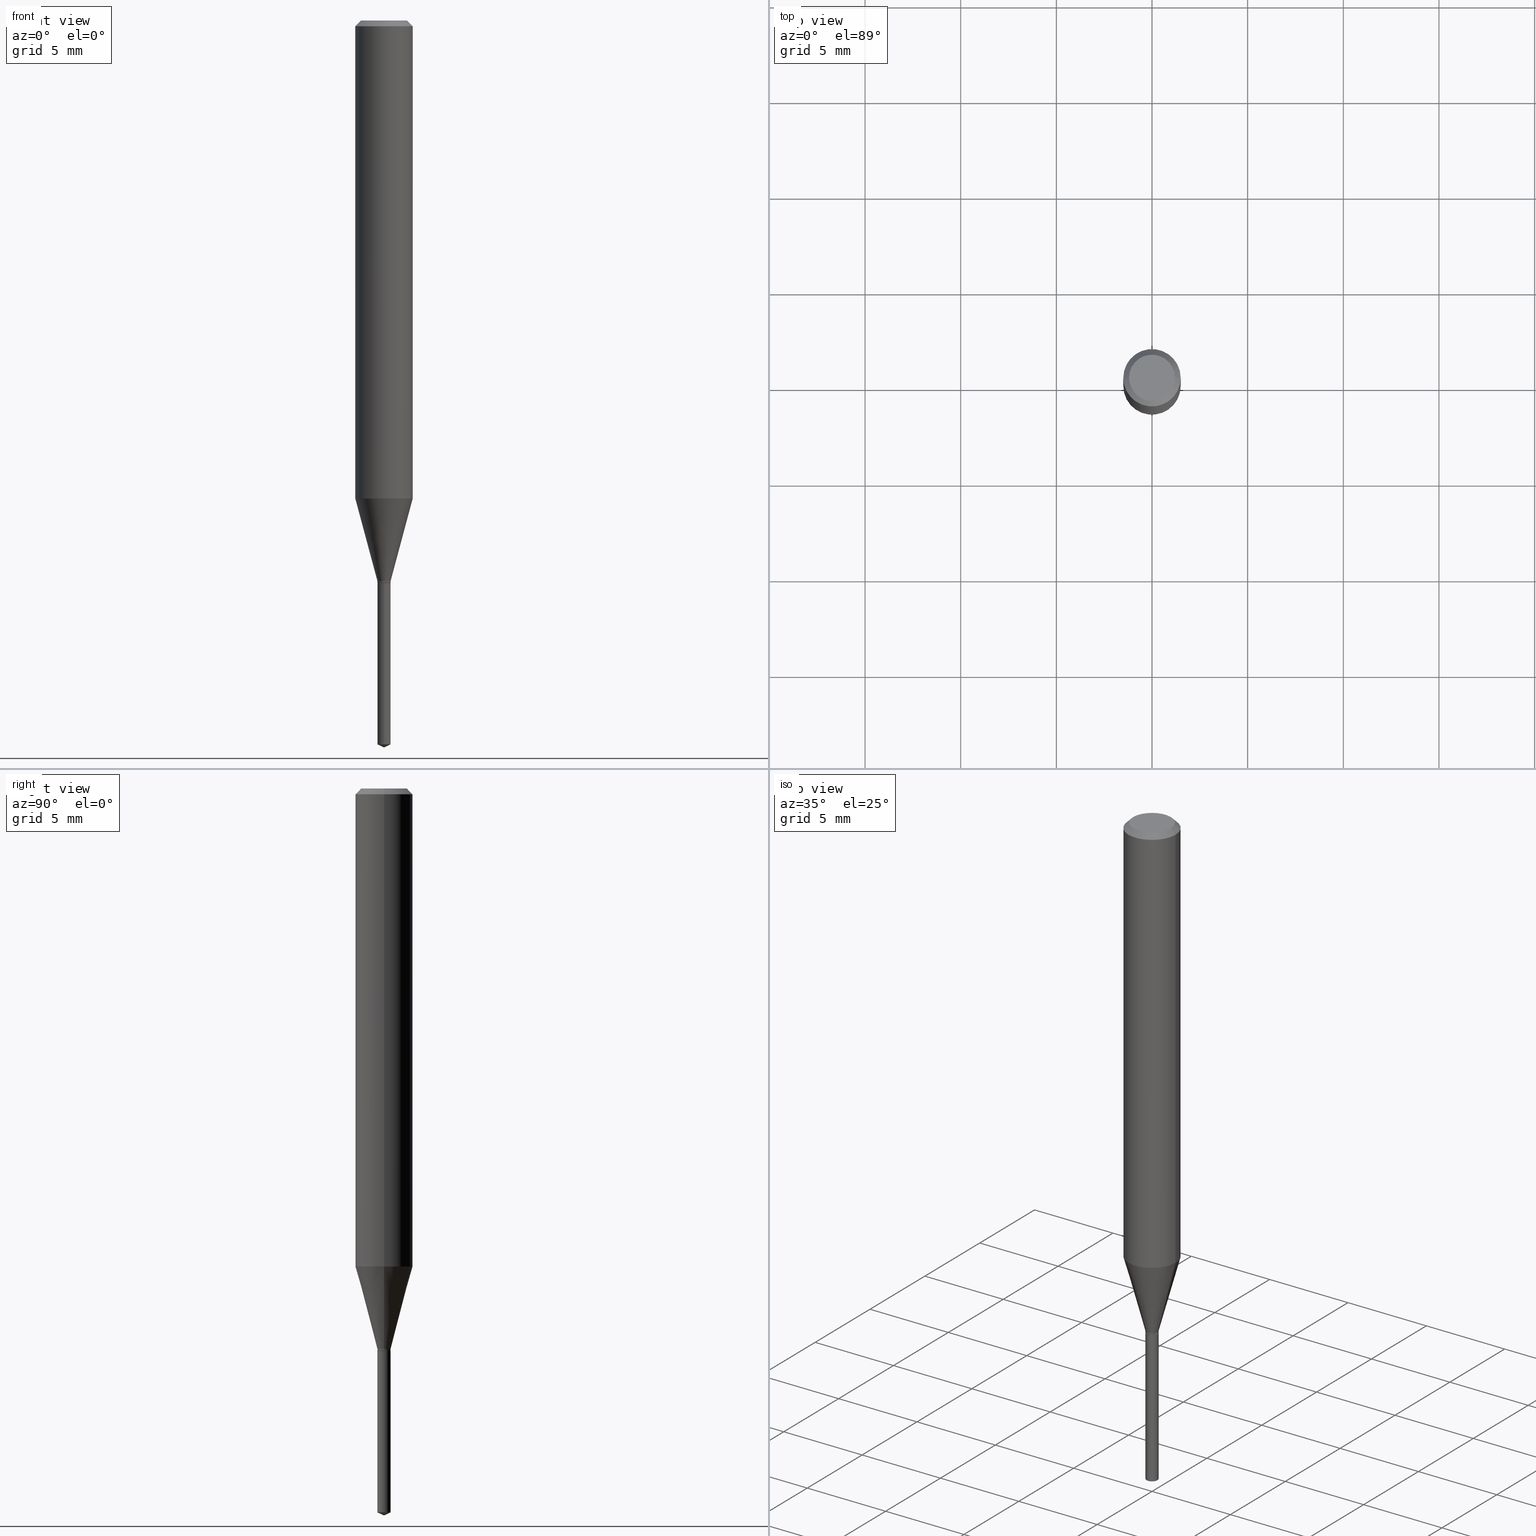
[diagram: canonical four-view strip — front | top / right | iso, engineering-drawing reading convention]
A machine part, canonical four-view strip (front | top / right | iso — engineering-drawing reading convention). The complete STEP part file that produces these views, byte-faithful:
ISO-10303-21;
HEADER;
FILE_DESCRIPTION (( 'STEP AP203' ),
    '1' );
FILE_NAME ('07444.STEP',
    '2024-04-23T21:30:43',
    ( '' ),
    ( '' ),
    'SwSTEP 2.0',
    'SolidWorks 2023',
    '' );
FILE_SCHEMA (( 'CONFIG_CONTROL_DESIGN' ));
ENDSEC;

DATA;
#1 = VERTEX_POINT ( 'NONE', #390 ) ;
#2 = EDGE_CURVE ( 'NONE', #226, #453, #181, .T. ) ;
#3 = DIRECTION ( 'NONE',  ( -0.7071067811865218156, 7.493145998870261075E-15, 0.7071067811865732189 ) ) ;
#4 = FACE_OUTER_BOUND ( 'NONE', #434, .T. ) ;
#5 =( NAMED_UNIT ( * ) SI_UNIT ( $, .STERADIAN. ) SOLID_ANGLE_UNIT ( ) );
#6 = DIRECTION ( 'NONE',  ( -2.436895557736890355E-29, 3.503758718580032420E-15, 1.000000000000000000 ) ) ;
#7 = AXIS2_PLACEMENT_3D ( 'NONE', #12, #381, #354 ) ;
#8 = ORIENTED_EDGE ( 'NONE', *, *, #334, .F. ) ;
#9 = DIRECTION ( 'NONE',  ( 0.2588190451025213501, 1.565188264969621968E-15, 0.9659258262890682012 ) ) ;
#10 = CIRCLE ( 'NONE', #287, 0.04724000000000000421 ) ;
#11 = CARTESIAN_POINT ( 'NONE',  ( 0.000000000000000000, 0.000000000000000000, 0.000000000000000000 ) ) ;
#12 = CARTESIAN_POINT ( 'NONE',  ( 2.820603721053936118E-29, -4.027074576221683782E-15, -1.153399999999999981 ) ) ;
#13 = CARTESIAN_POINT ( 'NONE',  ( 2.830630143159295633E-29, -4.041389649710940900E-15, -1.157499999999999973 ) ) ;
#14 = LINE ( 'NONE', #356, #463 ) ;
#15 = ORIENTED_EDGE ( 'NONE', *, *, #63, .F. ) ;
#16 = DIRECTION ( 'NONE',  ( 1.000000000000000000, -6.982962677686273810E-15, 0.000000000000000000 ) ) ;
#17 = CALENDAR_DATE ( 2024, 23, 4 ) ;
#18 = CARTESIAN_POINT ( 'NONE',  ( 2.830630143159295633E-29, -4.041389649710940900E-15, -1.157499999999999973 ) ) ;
#19 = CIRCLE ( 'NONE', #200, 0.05905000000000011628 ) ;
#20 = CONICAL_SURFACE ( 'NONE', #426, 0.05904999999999999832, 0.7853981633974452814 ) ;
#21 = PRODUCT_DEFINITION ( 'UNKNOWN', '', #256, #32 ) ;
#22 = CARTESIAN_POINT ( 'NONE',  ( 0.000000000000000000, 0.000000000000000000, 0.000000000000000000 ) ) ;
#23 = DIRECTION ( 'NONE',  ( -2.436895557736890355E-29, 3.503758718580032420E-15, 1.000000000000000000 ) ) ;
#24 = APPROVAL_STATUS ( 'not_yet_approved' ) ;
#25 = EDGE_CURVE ( 'NONE', #231, #178, #351, .T. ) ;
#26 = LINE ( 'NONE', #188, #255 ) ;
#27 = CARTESIAN_POINT ( 'NONE',  ( 0.01359999999999999924, -4.134612201458052346E-15, -1.156999999999999806 ) ) ;
#28 = COORDINATED_UNIVERSAL_TIME_OFFSET ( 5, 0, .BEHIND. ) ;
#29 = CARTESIAN_POINT ( 'NONE',  ( 0.000000000000000000, 0.000000000000000000, 0.000000000000000000 ) ) ;
#30 = AXIS2_PLACEMENT_3D ( 'NONE', #110, #36, #193 ) ;
#31 = CIRCLE ( 'NONE', #461, 0.05905000000000011628 ) ;
#32 = DESIGN_CONTEXT ( 'detailed design', #117, 'design' ) ;
#33 = DIRECTION ( 'NONE',  ( 6.982962677686265922E-15, 1.000000000000000000, -3.503758718580032420E-15 ) ) ;
#34 = CARTESIAN_POINT ( 'NONE',  ( -0.05904999999999999832, 3.711095515056362547E-16, -0.01181000000000007218 ) ) ;
#35 = PERSON_AND_ORGANIZATION_ROLE ( 'creator' ) ;
#36 = DIRECTION ( 'NONE',  ( -2.445468806185136597E-29, 3.491481338843145583E-15, 1.000000000000000000 ) ) ;
#37 = DIRECTION ( 'NONE',  ( 1.000000000000000000, -6.982962677686265922E-15, 4.876176775795935793E-29 ) ) ;
#38 = EDGE_CURVE ( 'NONE', #453, #226, #403, .T. ) ;
#39 = ORIENTED_EDGE ( 'NONE', *, *, #38, .F. ) ;
#40 = EDGE_CURVE ( 'NONE', #140, #348, #47, .T. ) ;
#41 = AXIS2_PLACEMENT_3D ( 'NONE', #214, #288, #400 ) ;
#42 = ORIENTED_EDGE ( 'NONE', *, *, #422, .T. ) ;
#43 = ADVANCED_FACE ( 'NONE', ( #201 ), #247, .T. ) ;
#44 = DIRECTION ( 'NONE',  ( -2.445468806185136597E-29, 3.491481338843145583E-15, 1.000000000000000000 ) ) ;
#45 = ADVANCED_FACE ( 'NONE', ( #291 ), #280, .F. ) ;
#46 = AXIS2_PLACEMENT_3D ( 'NONE', #344, #319, #239 ) ;
#47 = LINE ( 'NONE', #315, #406 ) ;
#48 = DIRECTION ( 'NONE',  ( 0.7071067811865453523, -7.319954787623248157E-15, -0.7071067811865496822 ) ) ;
#49 =( CONVERSION_BASED_UNIT ( 'INCH', #398 ) LENGTH_UNIT ( ) NAMED_UNIT ( #384 ) );
#50 = EDGE_LOOP ( 'NONE', ( #55, #88, #340, #15 ) ) ;
#51 = FACE_OUTER_BOUND ( 'NONE', #296, .T. ) ;
#52 = CARTESIAN_POINT ( 'NONE',  ( -0.04724000000000000421, 3.504923541997677355E-16, -3.380025165670481712E-19 ) ) ;
#53 = EDGE_LOOP ( 'NONE', ( #100, #429, #86, #197 ) ) ;
#54 = DIRECTION ( 'NONE',  ( -2.445468806185136597E-29, 3.491481338843145583E-15, 1.000000000000000000 ) ) ;
#55 = ORIENTED_EDGE ( 'NONE', *, *, #99, .F. ) ;
#56 = ORGANIZATION ( 'UNSPECIFIED', 'UNSPECIFIED', '' ) ;
#57 = DIRECTION ( 'NONE',  ( -2.445468806185136597E-29, 3.491481338843145583E-15, 1.000000000000000000 ) ) ;
#58 = DIRECTION ( 'NONE',  ( -2.445468806185136597E-29, 3.491481338843145583E-15, 1.000000000000000000 ) ) ;
#59 =( NAMED_UNIT ( * ) PLANE_ANGLE_UNIT ( ) SI_UNIT ( $, .RADIAN. ) );
#60 = SECURITY_CLASSIFICATION_LEVEL ( 'unclassified' ) ;
#61 = EDGE_CURVE ( 'NONE', #175, #457, #478, .T. ) ;
#62 = PRODUCT_DEFINITION_SHAPE ( 'NONE', 'NONE',  #21 ) ;
#63 = EDGE_CURVE ( 'NONE', #206, #175, #19, .T. ) ;
#64 = CYLINDRICAL_SURFACE ( 'NONE', #357, 0.05905000000000006077 ) ;
#65 = DATE_TIME_ROLE ( 'creation_date' ) ;
#66 = AXIS2_PLACEMENT_3D ( 'NONE', #89, #198, #415 ) ;
#67 = VECTOR ( 'NONE', #48, 39.37007874015748143 ) ;
#68 = CARTESIAN_POINT ( 'NONE',  ( 2.830630143159295633E-29, -4.041389649710940900E-15, -1.157499999999999973 ) ) ;
#69 = DATE_AND_TIME ( #192, #242 ) ;
#70 = EDGE_CURVE ( 'NONE', #206, #349, #211, .T. ) ;
#71 = DIRECTION ( 'NONE',  ( 1.000000000000000000, -6.982962677686267499E-15, 4.876176775795936353E-29 ) ) ;
#72 = FACE_OUTER_BOUND ( 'NONE', #81, .T. ) ;
#73 = PERSON_AND_ORGANIZATION_ROLE ( 'design_owner' ) ;
#74 = ADVANCED_FACE ( 'NONE', ( #282 ), #417, .T. ) ;
#75 = DATE_AND_TIME ( #254, #276 ) ;
#76 = DIRECTION ( 'NONE',  ( -2.436895557736890355E-29, 3.503758718580032420E-15, 1.000000000000000000 ) ) ;
#77 = CC_DESIGN_APPROVAL ( #292, ( #433 ) ) ;
#78 = PERSON_AND_ORGANIZATION_ROLE ( 'creator' ) ;
#79 = DIRECTION ( 'NONE',  ( 1.000000000000000000, -6.982962677686266711E-15, 4.876176775795935793E-29 ) ) ;
#80 = LINE ( 'NONE', #224, #432 ) ;
#81 = EDGE_LOOP ( 'NONE', ( #157, #420, #84, #229 ) ) ;
#82 = DIRECTION ( 'NONE',  ( -2.438088387897960049E-29, 3.491481338843145188E-15, 1.000000000000000000 ) ) ;
#83 = CIRCLE ( 'NONE', #311, 0.01359999999999999924 ) ;
#84 = ORIENTED_EDGE ( 'NONE', *, *, #174, .F. ) ;
#85 = CARTESIAN_POINT ( 'NONE',  ( 0.05905000000000013016, -3.847187489990594965E-15, -0.9837782907959944367 ) ) ;
#86 = ORIENTED_EDGE ( 'NONE', *, *, #2, .F. ) ;
#87 = CC_DESIGN_PERSON_AND_ORGANIZATION_ASSIGNMENT ( #476, #73, ( #212 ) ) ;
#88 = ORIENTED_EDGE ( 'NONE', *, *, #38, .T. ) ;
#89 = CARTESIAN_POINT ( 'NONE',  ( 3.640308713383532375E-29, -5.205542270312043558E-15, -1.489758215849092071 ) ) ;
#90 = CARTESIAN_POINT ( 'NONE',  ( 3.640308713383532375E-29, -5.205542270312043558E-15, -1.489758215849092071 ) ) ;
#91 = PLANE ( 'NONE',  #337 ) ;
#92 = CLOSED_SHELL ( 'NONE', ( #414, #378, #233, #392, #45 ) ) ;
#93 = VERTEX_POINT ( 'NONE', #248 ) ;
#94 = PERSON_AND_ORGANIZATION ( #345, #56 ) ;
#95 = CARTESIAN_POINT ( 'NONE',  ( 3.665860549465548495E-29, -5.213551284776692655E-15, -1.496099999999999985 ) ) ;
#96 = ORIENTED_EDGE ( 'NONE', *, *, #203, .T. ) ;
#97 = ADVANCED_FACE ( 'NONE', ( #475 ), #115, .T. ) ;
#98 = EDGE_LOOP ( 'NONE', ( #102, #262 ) ) ;
#99 = EDGE_CURVE ( 'NONE', #453, #206, #216, .T. ) ;
#100 = ORIENTED_EDGE ( 'NONE', *, *, #370, .T. ) ;
#101 = MECHANICAL_CONTEXT ( 'NONE', #488, 'mechanical' ) ;
#102 = ORIENTED_EDGE ( 'NONE', *, *, #410, .T. ) ;
#103 = LOCAL_TIME ( 17, 30, 43.00000000000000000, #113 ) ;
#104 = DIRECTION ( 'NONE',  ( 1.000000000000000000, -6.982962677686266711E-15, 0.000000000000000000 ) ) ;
#105 = EDGE_CURVE ( 'NONE', #204, #427, #26, .T. ) ;
#106 = DIRECTION ( 'NONE',  ( -2.445468806185136877E-29, 3.491481338843145188E-15, 1.000000000000000000 ) ) ;
#107 = FACE_OUTER_BOUND ( 'NONE', #307, .T. ) ;
#108 = DATE_TIME_ROLE ( 'classification_date' ) ;
#109 = PERSON_AND_ORGANIZATION ( #345, #56 ) ;
#110 = CARTESIAN_POINT ( 'NONE',  ( 2.820603721053936118E-29, -4.027074576221683782E-15, -1.153399999999999981 ) ) ;
#111 = DIRECTION ( 'NONE',  ( 2.445468806185136597E-29, -3.491481338843145583E-15, -1.000000000000000000 ) ) ;
#112 = CARTESIAN_POINT ( 'NONE',  ( 2.830630143159295633E-29, -4.041389649710940900E-15, -1.157499999999999973 ) ) ;
#113 = COORDINATED_UNIVERSAL_TIME_OFFSET ( 5, 0, .BEHIND. ) ;
#114 = AXIS2_PLACEMENT_3D ( 'NONE', #135, #271, #391 ) ;
#115 = CYLINDRICAL_SURFACE ( 'NONE', #329, 0.01359999999999999924 ) ;
#116 = ADVANCED_FACE ( 'NONE', ( #297 ), #91, .F. ) ;
#117 = APPLICATION_CONTEXT ( 'configuration controlled 3d designs of mechanical parts and assemblies' ) ;
#118 = ADVANCED_FACE ( 'NONE', ( #454 ), #119, .T. ) ;
#119 = CONICAL_SURFACE ( 'NONE', #189, 0.01359999999999999924, 0.2617993877991500740 ) ;
#120 = VECTOR ( 'NONE', #387, 39.37007874015748854 ) ;
#121 = ADVANCED_FACE ( 'NONE', ( #223 ), #365, .T. ) ;
#122 = ORIENTED_EDGE ( 'NONE', *, *, #228, .F. ) ;
#123 = CARTESIAN_POINT ( 'NONE',  ( -0.05905000000000013016, -3.015268058406879369E-15, -0.9837782907959944367 ) ) ;
#124 = DIRECTION ( 'NONE',  ( -2.445468806185136877E-29, 3.491481338843145188E-15, 1.000000000000000000 ) ) ;
#125 = EDGE_CURVE ( 'NONE', #427, #226, #333, .T. ) ;
#126 = LOCAL_TIME ( 17, 30, 43.00000000000000000, #284 ) ;
#127 = ORIENTED_EDGE ( 'NONE', *, *, #125, .T. ) ;
#128 = ORIENTED_EDGE ( 'NONE', *, *, #456, .F. ) ;
#129 = CARTESIAN_POINT ( 'NONE',  ( -9.496829241649684687E-17, -0.01360000000000521035, -1.489758215849092071 ) ) ;
#130 = DIRECTION ( 'NONE',  ( -2.436895557736890355E-29, 3.503758718580032420E-15, 1.000000000000000000 ) ) ;
#131 = AXIS2_PLACEMENT_3D ( 'NONE', #438, #185, #323 ) ;
#132 = ORIENTED_EDGE ( 'NONE', *, *, #137, .F. ) ;
#133 = APPLICATION_PROTOCOL_DEFINITION ( 'international standard', 'config_control_design', 1994, #488 ) ;
#134 = DIRECTION ( 'NONE',  ( -6.328713451373390678E-15, -0.9063077870366516020, 0.4226182617406956665 ) ) ;
#135 = CARTESIAN_POINT ( 'NONE',  ( 2.888098660104664204E-31, -4.123439461173780263E-17, -0.01181000000000007218 ) ) ;
#136 = DIRECTION ( 'NONE',  ( -6.982962677686266711E-15, -1.000000000000000000, 0.000000000000000000 ) ) ;
#137 = EDGE_CURVE ( 'NONE', #449, #93, #451, .T. ) ;
#138 = ORIENTED_EDGE ( 'NONE', *, *, #25, .T. ) ;
#139 = AXIS2_PLACEMENT_3D ( 'NONE', #208, #58, #465 ) ;
#140 = VERTEX_POINT ( 'NONE', #473 ) ;
#141 = CARTESIAN_POINT ( 'NONE',  ( 2.830630143159295633E-29, -4.041389649710940900E-15, -1.157499999999999973 ) ) ;
#142 = CC_DESIGN_SECURITY_CLASSIFICATION ( #433, ( #256 ) ) ;
#143 = FACE_OUTER_BOUND ( 'NONE', #318, .T. ) ;
#144 = DIRECTION ( 'NONE',  ( 1.000000000000000000, -6.982962677686273810E-15, 0.000000000000000000 ) ) ;
#145 = CARTESIAN_POINT ( 'NONE',  ( 0.000000000000000000, 0.000000000000000000, 0.000000000000000000 ) ) ;
#146 = CC_DESIGN_PERSON_AND_ORGANIZATION_ASSIGNMENT ( #94, #238, ( #256 ) ) ;
#147 = ADVANCED_FACE ( 'NONE', ( #436 ), #155, .T. ) ;
#148 = DIRECTION ( 'NONE',  ( 0.7071067811865218156, -2.468850131081987665E-15, 0.7071067811865732189 ) ) ;
#149 = CARTESIAN_POINT ( 'NONE',  ( 8.265746106709734507E-48, -1.180129479067563789E-33, -3.380025165646692144E-19 ) ) ;
#150 = APPROVAL_STATUS ( 'not_yet_approved' ) ;
#151 = DIRECTION ( 'NONE',  ( -2.445468806185136597E-29, 3.491481338843145583E-15, 1.000000000000000000 ) ) ;
#152 = ADVANCED_FACE ( 'NONE', ( #359 ), #199, .T. ) ;
#153 = ORIENTED_EDGE ( 'NONE', *, *, #243, .F. ) ;
#154 = CARTESIAN_POINT ( 'NONE',  ( 2.829407408756202832E-29, -4.039643909041518608E-15, -1.156999999999999806 ) ) ;
#155 = CONICAL_SURFACE ( 'NONE', #30, 0.01359999999999999924, 0.2617993877991500740 ) ;
#156 = AXIS2_PLACEMENT_3D ( 'NONE', #141, #54, #16 ) ;
#157 = ORIENTED_EDGE ( 'NONE', *, *, #480, .T. ) ;
#158 = SHAPE_DEFINITION_REPRESENTATION ( #62, #442 ) ;
#159 = ORIENTED_EDGE ( 'NONE', *, *, #372, .T. ) ;
#160 = ORIENTED_EDGE ( 'NONE', *, *, #353, .T. ) ;
#161 = AXIS2_PLACEMENT_3D ( 'NONE', #260, #259, #163 ) ;
#162 = CIRCLE ( 'NONE', #114, 0.05904999999999999832 ) ;
#163 = DIRECTION ( 'NONE',  ( 1.000000000000000000, -6.982962677686267499E-15, 4.876176775795936353E-29 ) ) ;
#164 = DIRECTION ( 'NONE',  ( -2.445468806185136597E-29, 3.491481338843145583E-15, 1.000000000000000000 ) ) ;
#165 = COORDINATED_UNIVERSAL_TIME_OFFSET ( 5, 0, .BEHIND. ) ;
#166 = DIRECTION ( 'NONE',  ( -2.445468806185136597E-29, 3.491481338843145583E-15, 1.000000000000000000 ) ) ;
#167 = ORIENTED_EDGE ( 'NONE', *, *, #70, .F. ) ;
#168 = ORIENTED_EDGE ( 'NONE', *, *, #317, .F. ) ;
#169 = DIRECTION ( 'NONE',  ( -6.982962677686267499E-15, -1.000000000000000000, 3.520397390770400227E-15 ) ) ;
#170 = AXIS2_PLACEMENT_3D ( 'NONE', #402, #76, #290 ) ;
#171 = ORIENTED_EDGE ( 'NONE', *, *, #395, .F. ) ;
#172 = LINE ( 'NONE', #207, #394 ) ;
#173 = DIRECTION ( 'NONE',  ( 0.000000000000000000, 0.000000000000000000, 1.000000000000000000 ) ) ;
#174 = EDGE_CURVE ( 'NONE', #457, #349, #425, .T. ) ;
#175 = VERTEX_POINT ( 'NONE', #85 ) ;
#176 = CARTESIAN_POINT ( 'NONE',  ( 2.405799122343734810E-29, -3.434843543873219650E-15, -0.9837782907959944367 ) ) ;
#177 = EDGE_CURVE ( 'NONE', #348, #427, #485, .T. ) ;
#178 = VERTEX_POINT ( 'NONE', #129 ) ;
#179 = CARTESIAN_POINT ( 'NONE',  ( 2.888098660104664204E-31, -4.123439461173780263E-17, -0.01181000000000007218 ) ) ;
#180 = DATE_AND_TIME ( #17, #222 ) ;
#181 = CIRCLE ( 'NONE', #139, 0.01359999999999999924 ) ;
#182 = DIRECTION ( 'NONE',  ( -2.445468806185136597E-29, 3.491481338843145583E-15, 1.000000000000000000 ) ) ;
#183 = APPROVAL_ROLE ( '' ) ;
#184 = APPROVAL ( #150, 'UNSPECIFIED' ) ;
#185 = DIRECTION ( 'NONE',  ( -2.436895557736890355E-29, 3.503758718580032420E-15, 1.000000000000000000 ) ) ;
#186 = CARTESIAN_POINT ( 'NONE',  ( 2.405799122343734810E-29, -3.434843543873219650E-15, -0.9837782907959944367 ) ) ;
#187 = DATE_AND_TIME ( #250, #103 ) ;
#188 = CARTESIAN_POINT ( 'NONE',  ( 0.01310000000000000053, -4.132866460788630843E-15, -1.157499999999999973 ) ) ;
#189 = AXIS2_PLACEMENT_3D ( 'NONE', #408, #483, #477 ) ;
#190 = CC_DESIGN_APPROVAL ( #236, ( #21 ) ) ;
#191 = CARTESIAN_POINT ( 'NONE',  ( 0.05905000000000006077, -4.123439461173744764E-16, 2.879382386107503023E-30 ) ) ;
#192 = CALENDAR_DATE ( 2024, 23, 4 ) ;
#193 = DIRECTION ( 'NONE',  ( 1.000000000000000000, -6.982962677686275388E-15, 0.000000000000000000 ) ) ;
#194 = ORIENTED_EDGE ( 'NONE', *, *, #441, .F. ) ;
#195 = AXIS2_PLACEMENT_3D ( 'NONE', #90, #458, #136 ) ;
#196 = UNCERTAINTY_MEASURE_WITH_UNIT (LENGTH_MEASURE( 1.000000000000000082E-05 ), #49, 'distance_accuracy_value', 'NONE');
#197 = ORIENTED_EDGE ( 'NONE', *, *, #125, .F. ) ;
#198 = DIRECTION ( 'NONE',  ( -2.436895557736890355E-29, 3.503758718580032420E-15, 1.000000000000000000 ) ) ;
#199 = CYLINDRICAL_SURFACE ( 'NONE', #161, 0.01359999999999999924 ) ;
#200 = AXIS2_PLACEMENT_3D ( 'NONE', #186, #182, #326 ) ;
#201 = FACE_OUTER_BOUND ( 'NONE', #263, .T. ) ;
#202 = CARTESIAN_POINT ( 'NONE',  ( 2.829407408756202832E-29, -4.039643909041518608E-15, -1.156999999999999806 ) ) ;
#203 = EDGE_CURVE ( 'NONE', #1, #178, #301, .T. ) ;
#204 = VERTEX_POINT ( 'NONE', #294 ) ;
#205 = EDGE_LOOP ( 'NONE', ( #459, #42 ) ) ;
#206 = VERTEX_POINT ( 'NONE', #123 ) ;
#207 = CARTESIAN_POINT ( 'NONE',  ( 0.01359999999999999924, -4.122042868638216732E-15, -1.153399999999999981 ) ) ;
#208 = CARTESIAN_POINT ( 'NONE',  ( 2.820603721053936118E-29, -4.027074576221683782E-15, -1.153399999999999981 ) ) ;
#209 = DIRECTION ( 'NONE',  ( -2.445468806185136597E-29, 3.491481338843145583E-15, 1.000000000000000000 ) ) ;
#210 = CARTESIAN_POINT ( 'NONE',  ( 3.645839443930160666E-29, -5.241973418867586655E-15, -1.496099999999999985 ) ) ;
#211 = LINE ( 'NONE', #399, #471 ) ;
#212 = PRODUCT ( '07444', '07444', '', ( #101 ) ) ;
#213 = AXIS2_PLACEMENT_3D ( 'NONE', #448, #303, #374 ) ;
#214 = CARTESIAN_POINT ( 'NONE',  ( 2.830630143159295633E-29, -4.041389649710940900E-15, -1.157499999999999973 ) ) ;
#215 = AXIS2_PLACEMENT_3D ( 'NONE', #13, #209, #352 ) ;
#216 = LINE ( 'NONE', #362, #375 ) ;
#217 = CC_DESIGN_DATE_AND_TIME_ASSIGNMENT ( #69, #65, ( #21 ) ) ;
#218 = DIRECTION ( 'NONE',  ( -2.445468806185136597E-29, 3.491481338843145583E-15, 1.000000000000000000 ) ) ;
#219 = PERSON_AND_ORGANIZATION ( #345, #56 ) ;
#220 = DIRECTION ( 'NONE',  ( -6.982962677686266711E-15, -1.000000000000000000, 0.000000000000000000 ) ) ;
#221 = CIRCLE ( 'NONE', #215, 0.01310000000000000053 ) ;
#222 = LOCAL_TIME ( 17, 30, 43.00000000000000000, #165 ) ;
#223 = FACE_OUTER_BOUND ( 'NONE', #487, .T. ) ;
#224 = CARTESIAN_POINT ( 'NONE',  ( -0.01359999999999999924, 9.663381206337361989E-17, -6.689751722746670884E-31 ) ) ;
#225 = AXIS2_PLACEMENT_3D ( 'NONE', #437, #111, #251 ) ;
#226 = VERTEX_POINT ( 'NONE', #257 ) ;
#227 = ORIENTED_EDGE ( 'NONE', *, *, #334, .T. ) ;
#228 = EDGE_CURVE ( 'NONE', #348, #453, #80, .T. ) ;
#229 = ORIENTED_EDGE ( 'NONE', *, *, #61, .F. ) ;
#230 = CLOSED_SHELL ( 'NONE', ( #253, #74, #407, #147, #97, #152, #118, #121, #285, #299, #116, #43 ) ) ;
#231 = VERTEX_POINT ( 'NONE', #416 ) ;
#232 = PERSON_AND_ORGANIZATION_ROLE ( 'classification_officer' ) ;
#233 = ADVANCED_FACE ( 'NONE', ( #355 ), #489, .T. ) ;
#234 = FACE_OUTER_BOUND ( 'NONE', #205, .T. ) ;
#235 = ORIENTED_EDGE ( 'NONE', *, *, #320, .F. ) ;
#236 = APPROVAL ( #24, 'UNSPECIFIED' ) ;
#237 = ORIENTED_EDGE ( 'NONE', *, *, #480, .F. ) ;
#238 = PERSON_AND_ORGANIZATION_ROLE ( 'design_supplier' ) ;
#239 = DIRECTION ( 'NONE',  ( 1.000000000000000000, -6.982962677686273810E-15, 0.000000000000000000 ) ) ;
#240 = EDGE_LOOP ( 'NONE', ( #302, #268, #237, #235 ) ) ;
#241 = CARTESIAN_POINT ( 'NONE',  ( -9.496829241650489572E-17, -0.01360000000000404115, -1.157499999999999973 ) ) ;
#242 = LOCAL_TIME ( 17, 30, 43.00000000000000000, #28 ) ;
#243 = EDGE_CURVE ( 'NONE', #140, #204, #221, .T. ) ;
#244 = PERSON_AND_ORGANIZATION ( #345, #56 ) ;
#245 = CARTESIAN_POINT ( 'NONE',  ( 8.265746106709734507E-48, -1.180129479067563789E-33, -3.380025165646692144E-19 ) ) ;
#246 = APPROVAL_STATUS ( 'not_yet_approved' ) ;
#247 = CONICAL_SURFACE ( 'NONE', #350, 0.01310000000000000053, 0.7853981633974119747 ) ;
#248 = CARTESIAN_POINT ( 'NONE',  ( 0.04724000000000000421, -3.852183633974369345E-16, -3.380025165621689721E-19 ) ) ;
#249 = VECTOR ( 'NONE', #335, 39.37007874015748143 ) ;
#250 = CALENDAR_DATE ( 2024, 23, 4 ) ;
#251 = DIRECTION ( 'NONE',  ( -1.000000000000000000, 6.982962677686266711E-15, 0.000000000000000000 ) ) ;
#252 = CYLINDRICAL_SURFACE ( 'NONE', #439, 0.01360000000000000098 ) ;
#253 = ADVANCED_FACE ( 'NONE', ( #107 ), #452, .T. ) ;
#254 = CALENDAR_DATE ( 2024, 23, 4 ) ;
#255 = VECTOR ( 'NONE', #148, 39.37007874015748143 ) ;
#256 = PRODUCT_DEFINITION_FORMATION_WITH_SPECIFIED_SOURCE ( 'ANY', '', #212, .NOT_KNOWN. ) ;
#257 = CARTESIAN_POINT ( 'NONE',  ( 0.01359999999999999924, -4.122042868638216732E-15, -1.153399999999999981 ) ) ;
#258 = ORIENTED_EDGE ( 'NONE', *, *, #410, .F. ) ;
#259 = DIRECTION ( 'NONE',  ( -2.445468806185136597E-29, 3.491481338843145583E-15, 1.000000000000000000 ) ) ;
#260 = CARTESIAN_POINT ( 'NONE',  ( 0.000000000000000000, 0.000000000000000000, 0.000000000000000000 ) ) ;
#261 = AXIS2_PLACEMENT_3D ( 'NONE', #11, #173, #314 ) ;
#262 = ORIENTED_EDGE ( 'NONE', *, *, #395, .T. ) ;
#263 = EDGE_LOOP ( 'NONE', ( #421, #430, #450, #300 ) ) ;
#264 = PERSON_AND_ORGANIZATION ( #345, #56 ) ;
#265 = ORIENTED_EDGE ( 'NONE', *, *, #422, .F. ) ;
#266 = AXIS2_PLACEMENT_3D ( 'NONE', #154, #44, #338 ) ;
#267 = VECTOR ( 'NONE', #466, 39.37007874015748143 ) ;
#268 = ORIENTED_EDGE ( 'NONE', *, *, #99, .T. ) ;
#269 = CARTESIAN_POINT ( 'NONE',  ( -9.228500701063235563E-28, 1.327154942851870051E-13, 37.87397874015748300 ) ) ;
#270 = ORIENTED_EDGE ( 'NONE', *, *, #317, .T. ) ;
#271 = DIRECTION ( 'NONE',  ( -2.445468806185136597E-29, 3.491481338843145583E-15, 1.000000000000000000 ) ) ;
#272 =( LENGTH_UNIT ( ) NAMED_UNIT ( * ) SI_UNIT ( $, .METRE. ) );
#273 = ORIENTED_EDGE ( 'NONE', *, *, #105, .F. ) ;
#274 = DIRECTION ( 'NONE',  ( 2.438088387897960049E-29, -3.491481338843145188E-15, -1.000000000000000000 ) ) ;
#275 = AXIS2_PLACEMENT_3D ( 'NONE', #269, #130, #428 ) ;
#276 = LOCAL_TIME ( 17, 30, 43.00000000000000000, #361 ) ;
#277 = ORIENTED_EDGE ( 'NONE', *, *, #177, .T. ) ;
#278 = LINE ( 'NONE', #313, #267 ) ;
#279 = VERTEX_POINT ( 'NONE', #241 ) ;
#280 = PLANE ( 'NONE',  #310 ) ;
#281 = MANIFOLD_SOLID_BREP ( 'Body-Move/Copy2[2]', #230 ) ;
#282 = FACE_OUTER_BOUND ( 'NONE', #377, .T. ) ;
#283 = DIRECTION ( 'NONE',  ( 1.000000000000000000, -6.982962677686266711E-15, 4.876176775795935793E-29 ) ) ;
#284 = COORDINATED_UNIVERSAL_TIME_OFFSET ( 5, 0, .BEHIND. ) ;
#285 = ADVANCED_FACE ( 'NONE', ( #4 ), #20, .T. ) ;
#286 = VECTOR ( 'NONE', #106, 39.37007874015748143 ) ;
#287 = AXIS2_PLACEMENT_3D ( 'NONE', #149, #218, #363 ) ;
#288 = DIRECTION ( 'NONE',  ( -2.436895557736890355E-29, 3.503758718580032420E-15, 1.000000000000000000 ) ) ;
#289 = CALENDAR_DATE ( 2024, 23, 4 ) ;
#290 = DIRECTION ( 'NONE',  ( -6.982962677686266711E-15, -1.000000000000000000, 0.000000000000000000 ) ) ;
#291 = FACE_OUTER_BOUND ( 'NONE', #98, .T. ) ;
#292 = APPROVAL ( #246, 'UNSPECIFIED' ) ;
#293 = ORIENTED_EDGE ( 'NONE', *, *, #40, .T. ) ;
#294 = CARTESIAN_POINT ( 'NONE',  ( 0.01310000000000000053, -4.132866460788630843E-15, -1.157499999999999973 ) ) ;
#295 = CIRCLE ( 'NONE', #131, 0.01359999999999999924 ) ;
#296 = EDGE_LOOP ( 'NONE', ( #346, #159, #194 ) ) ;
#297 = FACE_OUTER_BOUND ( 'NONE', #423, .T. ) ;
#298 = EDGE_LOOP ( 'NONE', ( #341, #138, #409 ) ) ;
#299 = ADVANCED_FACE ( 'NONE', ( #234 ), #389, .F. ) ;
#300 = ORIENTED_EDGE ( 'NONE', *, *, #177, .F. ) ;
#301 = CIRCLE ( 'NONE', #66, 0.01360000000000000271 ) ;
#302 = ORIENTED_EDGE ( 'NONE', *, *, #2, .T. ) ;
#303 = DIRECTION ( 'NONE',  ( -2.445468806185136597E-29, 3.491481338843145583E-15, 1.000000000000000000 ) ) ;
#304 = ORIENTED_EDGE ( 'NONE', *, *, #440, .T. ) ;
#305 = DIRECTION ( 'NONE',  ( 1.000000000000000000, -6.982962677686275388E-15, 0.000000000000000000 ) ) ;
#306 = ORIENTED_EDGE ( 'NONE', *, *, #336, .F. ) ;
#307 = EDGE_LOOP ( 'NONE', ( #270, #293, #386, #273 ) ) ;
#308 = CARTESIAN_POINT ( 'NONE',  ( -0.01359999999999999924, -3.936725430568227169E-15, -1.156999999999999806 ) ) ;
#309 = DIRECTION ( 'NONE',  ( -2.436895557736890074E-29, 3.503758718580032420E-15, 1.000000000000000000 ) ) ;
#310 = AXIS2_PLACEMENT_3D ( 'NONE', #18, #474, #33 ) ;
#311 = AXIS2_PLACEMENT_3D ( 'NONE', #202, #166, #305 ) ;
#312 = ORIENTED_EDGE ( 'NONE', *, *, #440, .F. ) ;
#313 = CARTESIAN_POINT ( 'NONE',  ( -9.496829241650492037E-17, -0.01360000000000404288, -1.157499999999999973 ) ) ;
#314 = DIRECTION ( 'NONE',  ( 1.000000000000000000, 0.000000000000000000, 0.000000000000000000 ) ) ;
#315 = CARTESIAN_POINT ( 'NONE',  ( -0.01310000000000000053, -3.948308551326367772E-15, -1.157499999999999973 ) ) ;
#316 = DIRECTION ( 'NONE',  ( -1.000000000000000000, 6.982962677686266711E-15, 0.000000000000000000 ) ) ;
#317 = EDGE_CURVE ( 'NONE', #204, #140, #446, .T. ) ;
#318 = EDGE_LOOP ( 'NONE', ( #128, #96, #227, #171 ) ) ;
#319 = DIRECTION ( 'NONE',  ( -2.445468806185136597E-29, 3.491481338843145583E-15, 1.000000000000000000 ) ) ;
#320 = EDGE_CURVE ( 'NONE', #226, #175, #172, .T. ) ;
#321 = CONICAL_SURFACE ( 'NONE', #339, 84.42940631927562833, 1.134464013796321780 ) ;
#322 = DIRECTION ( 'NONE',  ( -2.445468806185136877E-29, 3.491481338843145188E-15, 1.000000000000000000 ) ) ;
#323 = DIRECTION ( 'NONE',  ( -6.982962677686265922E-15, -1.000000000000000000, 0.000000000000000000 ) ) ;
#324 = PERSON_AND_ORGANIZATION ( #345, #56 ) ;
#325 = CC_DESIGN_DATE_AND_TIME_ASSIGNMENT ( #180, #108, ( #433 ) ) ;
#326 = DIRECTION ( 'NONE',  ( 1.000000000000000000, -6.982962677686266711E-15, 0.000000000000000000 ) ) ;
#327 = CARTESIAN_POINT ( 'NONE',  ( 9.663381206341009239E-17, 0.01359999999999595734, -1.157499999999999973 ) ) ;
#328 = APPROVAL_DATE_TIME ( #187, #184 ) ;
#329 = AXIS2_PLACEMENT_3D ( 'NONE', #145, #411, #71 ) ;
#330 = APPROVAL_PERSON_ORGANIZATION ( #219, #236, #183 ) ;
#331 = DIRECTION ( 'NONE',  ( -0.2588190451025213501, 5.211531920934551042E-15, 0.9659258262890682012 ) ) ;
#332 = APPLICATION_PROTOCOL_DEFINITION ( 'international standard', 'config_control_design', 1994, #117 ) ;
#333 = LINE ( 'NONE', #373, #383 ) ;
#334 = EDGE_CURVE ( 'NONE', #178, #279, #278, .T. ) ;
#335 = DIRECTION ( 'NONE',  ( -0.7071067811865453523, 2.468850131082234184E-15, -0.7071067811865496822 ) ) ;
#336 = EDGE_CURVE ( 'NONE', #349, #457, #162, .T. ) ;
#337 = AXIS2_PLACEMENT_3D ( 'NONE', #68, #82, #37 ) ;
#338 = DIRECTION ( 'NONE',  ( 1.000000000000000000, -6.982962677686275388E-15, 0.000000000000000000 ) ) ;
#339 = AXIS2_PLACEMENT_3D ( 'NONE', #347, #6, #169 ) ;
#340 = ORIENTED_EDGE ( 'NONE', *, *, #320, .T. ) ;
#341 = ORIENTED_EDGE ( 'NONE', *, *, #372, .F. ) ;
#342 = APPROVAL_PERSON_ORGANIZATION ( #324, #184, #482 ) ;
#343 = CARTESIAN_POINT ( 'NONE',  ( 2.830630143159295633E-29, -4.041389649710940900E-15, -1.157499999999999973 ) ) ;
#344 = CARTESIAN_POINT ( 'NONE',  ( 2.830630143159295633E-29, -4.041389649710940900E-15, -1.157499999999999973 ) ) ;
#345 = PERSON ( 'UNSPECIFIED', 'UNSPECIFIED', 'UNSPECIFIED', ('UNSPECIFIED'), ('UNSPECIFIED'), ('UNSPECIFIED') ) ;
#346 = ORIENTED_EDGE ( 'NONE', *, *, #25, .F. ) ;
#347 = CARTESIAN_POINT ( 'NONE',  ( -9.228500701063235563E-28, 1.327154942851870051E-13, 37.87397874015748300 ) ) ;
#348 = VERTEX_POINT ( 'NONE', #308 ) ;
#349 = VERTEX_POINT ( 'NONE', #435 ) ;
#350 = AXIS2_PLACEMENT_3D ( 'NONE', #343, #164, #144 ) ;
#351 = LINE ( 'NONE', #210, #413 ) ;
#352 = DIRECTION ( 'NONE',  ( 1.000000000000000000, -6.982962677686273810E-15, 0.000000000000000000 ) ) ;
#353 = EDGE_CURVE ( 'NONE', #93, #457, #460, .T. ) ;
#354 = DIRECTION ( 'NONE',  ( 1.000000000000000000, -6.982962677686275388E-15, 0.000000000000000000 ) ) ;
#355 = FACE_OUTER_BOUND ( 'NONE', #298, .T. ) ;
#356 = CARTESIAN_POINT ( 'NONE',  ( 9.663381206340193261E-17, 0.01359999999999595907, -1.157499999999999973 ) ) ;
#357 = AXIS2_PLACEMENT_3D ( 'NONE', #22, #479, #283 ) ;
#358 = CYLINDRICAL_SURFACE ( 'NONE', #170, 0.01360000000000000098 ) ;
#359 = FACE_OUTER_BOUND ( 'NONE', #388, .T. ) ;
#360 = FACE_OUTER_BOUND ( 'NONE', #467, .T. ) ;
#361 = COORDINATED_UNIVERSAL_TIME_OFFSET ( 5, 0, .BEHIND. ) ;
#362 = CARTESIAN_POINT ( 'NONE',  ( -0.01359999999999999924, -3.930440764158309756E-15, -1.153399999999999981 ) ) ;
#363 = DIRECTION ( 'NONE',  ( 1.000000000000000000, -6.982962677686266711E-15, 4.876185090822587894E-29 ) ) ;
#364 = DATE_AND_TIME ( #289, #126 ) ;
#365 = CYLINDRICAL_SURFACE ( 'NONE', #393, 0.05905000000000006077 ) ;
#366 = APPROVAL_DATE_TIME ( #75, #292 ) ;
#367 = CC_DESIGN_APPROVAL ( #184, ( #256 ) ) ;
#368 = LINE ( 'NONE', #34, #249 ) ;
#369 = DIRECTION ( 'NONE',  ( -2.445468806185136597E-29, 3.491481338843145583E-15, 1.000000000000000000 ) ) ;
#370 = EDGE_CURVE ( 'NONE', #427, #348, #83, .T. ) ;
#371 = PRODUCT_RELATED_PRODUCT_CATEGORY ( 'detail', '', ( #212 ) ) ;
#372 = EDGE_CURVE ( 'NONE', #231, #1, #424, .T. ) ;
#373 = CARTESIAN_POINT ( 'NONE',  ( 0.01359999999999999924, -9.496829241653323308E-17, 6.631600415082472706E-31 ) ) ;
#374 = DIRECTION ( 'NONE',  ( 1.000000000000000000, -6.982962677686266711E-15, 0.000000000000000000 ) ) ;
#375 = VECTOR ( 'NONE', #331, 39.37007874015747433 ) ;
#376 = CIRCLE ( 'NONE', #41, 0.01359999999999999924 ) ;
#377 = EDGE_LOOP ( 'NONE', ( #265, #160, #455, #312 ) ) ;
#378 = ADVANCED_FACE ( 'NONE', ( #51 ), #321, .T. ) ;
#379 = ORIENTED_EDGE ( 'NONE', *, *, #353, .F. ) ;
#380 = PERSON_AND_ORGANIZATION ( #345, #56 ) ;
#381 = DIRECTION ( 'NONE',  ( -2.445468806185136597E-29, 3.491481338843145583E-15, 1.000000000000000000 ) ) ;
#382 = CARTESIAN_POINT ( 'NONE',  ( 0.05904999999999999832, -4.463468013801466955E-16, -0.01181000000000007218 ) ) ;
#383 = VECTOR ( 'NONE', #322, 39.37007874015748143 ) ;
#384 = DIMENSIONAL_EXPONENTS ( 1.000000000000000000, 0.000000000000000000, 0.000000000000000000, 0.000000000000000000, 0.000000000000000000, 0.000000000000000000, 0.000000000000000000 ) ;
#385 = CIRCLE ( 'NONE', #195, 0.01360000000000000271 ) ;
#386 = ORIENTED_EDGE ( 'NONE', *, *, #370, .F. ) ;
#387 = DIRECTION ( 'NONE',  ( 6.439704144417045341E-15, 0.9063077870366544886, 0.4226182617406893938 ) ) ;
#388 = EDGE_LOOP ( 'NONE', ( #122, #277, #127, #39 ) ) ;
#389 = PLANE ( 'NONE',  #486 ) ;
#390 = CARTESIAN_POINT ( 'NONE',  ( 9.663381206341004308E-17, 0.01359999999999479854, -1.489758215849092071 ) ) ;
#391 = DIRECTION ( 'NONE',  ( 1.000000000000000000, -6.982962677686266711E-15, 0.000000000000000000 ) ) ;
#392 = ADVANCED_FACE ( 'NONE', ( #143 ), #358, .T. ) ;
#393 = AXIS2_PLACEMENT_3D ( 'NONE', #29, #369, #79 ) ;
#394 = VECTOR ( 'NONE', #9, 39.37007874015747433 ) ;
#395 = EDGE_CURVE ( 'NONE', #419, #279, #376, .T. ) ;
#396 = ORIENTED_EDGE ( 'NONE', *, *, #441, .T. ) ;
#397 = DIRECTION ( 'NONE',  ( -1.000000000000000000, 6.982962677686265922E-15, -4.876176775795935793E-29 ) ) ;
#398 = LENGTH_MEASURE_WITH_UNIT ( LENGTH_MEASURE( 0.02539999999999999897 ), #272 );
#399 = CARTESIAN_POINT ( 'NONE',  ( -0.05905000000000006077, 4.195754854663395916E-16, -2.904631170795524694E-30 ) ) ;
#400 = DIRECTION ( 'NONE',  ( -6.982962677686265922E-15, -1.000000000000000000, 0.000000000000000000 ) ) ;
#401 = ORIENTED_EDGE ( 'NONE', *, *, #456, .T. ) ;
#402 = CARTESIAN_POINT ( 'NONE',  ( 2.830630143159295633E-29, -4.041389649710940900E-15, -1.157499999999999973 ) ) ;
#403 = CIRCLE ( 'NONE', #7, 0.01359999999999999924 ) ;
#404 = CC_DESIGN_PERSON_AND_ORGANIZATION_ASSIGNMENT ( #380, #78, ( #256 ) ) ;
#405 = APPROVAL_ROLE ( '' ) ;
#406 = VECTOR ( 'NONE', #3, 39.37007874015748143 ) ;
#407 = ADVANCED_FACE ( 'NONE', ( #72 ), #64, .T. ) ;
#408 = CARTESIAN_POINT ( 'NONE',  ( 2.820603721053936118E-29, -4.027074576221683782E-15, -1.153399999999999981 ) ) ;
#409 = ORIENTED_EDGE ( 'NONE', *, *, #203, .F. ) ;
#410 = EDGE_CURVE ( 'NONE', #279, #419, #295, .T. ) ;
#411 = DIRECTION ( 'NONE',  ( -2.445468806185136597E-29, 3.491481338843145583E-15, 1.000000000000000000 ) ) ;
#412 = CC_DESIGN_PERSON_AND_ORGANIZATION_ASSIGNMENT ( #264, #232, ( #433 ) ) ;
#413 = VECTOR ( 'NONE', #134, 39.37007874015748854 ) ;
#414 = ADVANCED_FACE ( 'NONE', ( #360 ), #252, .T. ) ;
#415 = DIRECTION ( 'NONE',  ( -6.982962677686266711E-15, -1.000000000000000000, 0.000000000000000000 ) ) ;
#416 = CARTESIAN_POINT ( 'NONE',  ( 3.645839443930160666E-29, -5.241973418867586655E-15, -1.496099999999999985 ) ) ;
#417 = CONICAL_SURFACE ( 'NONE', #225, 0.05904999999999999832, 0.7853981633974452814 ) ;
#418 =( GEOMETRIC_REPRESENTATION_CONTEXT ( 3 ) GLOBAL_UNCERTAINTY_ASSIGNED_CONTEXT ( ( #196 ) ) GLOBAL_UNIT_ASSIGNED_CONTEXT ( ( #49, #59, #5 ) ) REPRESENTATION_CONTEXT ( 'NONE', 'WORKASPACE' ) );
#419 = VERTEX_POINT ( 'NONE', #327 ) ;
#420 = ORIENTED_EDGE ( 'NONE', *, *, #70, .T. ) ;
#421 = ORIENTED_EDGE ( 'NONE', *, *, #40, .F. ) ;
#422 = EDGE_CURVE ( 'NONE', #93, #449, #10, .T. ) ;
#423 = EDGE_LOOP ( 'NONE', ( #168, #153 ) ) ;
#424 = LINE ( 'NONE', #95, #120 ) ;
#425 = CIRCLE ( 'NONE', #213, 0.05904999999999999832 ) ;
#426 = AXIS2_PLACEMENT_3D ( 'NONE', #179, #470, #316 ) ;
#427 = VERTEX_POINT ( 'NONE', #27 ) ;
#428 = DIRECTION ( 'NONE',  ( -6.982962677686267499E-15, -1.000000000000000000, 3.520397390770400227E-15 ) ) ;
#429 = ORIENTED_EDGE ( 'NONE', *, *, #228, .T. ) ;
#430 = ORIENTED_EDGE ( 'NONE', *, *, #243, .T. ) ;
#431 = CARTESIAN_POINT ( 'NONE',  ( 0.05904999999999999832, -4.535783407291118600E-16, -0.01181000000000007218 ) ) ;
#432 = VECTOR ( 'NONE', #124, 39.37007874015748143 ) ;
#433 = SECURITY_CLASSIFICATION ( '', '', #60 ) ;
#434 = EDGE_LOOP ( 'NONE', ( #379, #132, #304, #484 ) ) ;
#435 = CARTESIAN_POINT ( 'NONE',  ( -0.05904999999999999832, -1.318463483776138408E-15, -0.01181000000000007218 ) ) ;
#436 = FACE_OUTER_BOUND ( 'NONE', #240, .T. ) ;
#437 = CARTESIAN_POINT ( 'NONE',  ( 2.888098660104664204E-31, -4.123439461173780263E-17, -0.01181000000000007218 ) ) ;
#438 = CARTESIAN_POINT ( 'NONE',  ( 2.830630143159295633E-29, -4.041389649710940900E-15, -1.157499999999999973 ) ) ;
#439 = AXIS2_PLACEMENT_3D ( 'NONE', #112, #23, #220 ) ;
#440 = EDGE_CURVE ( 'NONE', #449, #349, #368, .T. ) ;
#441 = EDGE_CURVE ( 'NONE', #178, #1, #385, .T. ) ;
#442 = ADVANCED_BREP_SHAPE_REPRESENTATION ( '07444', ( #444, #281, #261 ), #418 ) ;
#443 = DIRECTION ( 'NONE',  ( 1.000000000000000000, -6.982962677686266711E-15, 4.876185090822587894E-29 ) ) ;
#444 = MANIFOLD_SOLID_BREP ( 'Body-Move/Copy2[1]', #92 ) ;
#445 = AXIS2_PLACEMENT_3D ( 'NONE', #245, #151, #443 ) ;
#446 = CIRCLE ( 'NONE', #156, 0.01310000000000000053 ) ;
#447 = ORIENTED_EDGE ( 'NONE', *, *, #61, .T. ) ;
#448 = CARTESIAN_POINT ( 'NONE',  ( 2.888098660104664204E-31, -4.123439461173780263E-17, -0.01181000000000007218 ) ) ;
#449 = VERTEX_POINT ( 'NONE', #52 ) ;
#450 = ORIENTED_EDGE ( 'NONE', *, *, #105, .T. ) ;
#451 = CIRCLE ( 'NONE', #445, 0.04724000000000000421 ) ;
#452 = CONICAL_SURFACE ( 'NONE', #46, 0.01310000000000000053, 0.7853981633974119747 ) ;
#453 = VERTEX_POINT ( 'NONE', #464 ) ;
#454 = FACE_OUTER_BOUND ( 'NONE', #50, .T. ) ;
#455 = ORIENTED_EDGE ( 'NONE', *, *, #174, .T. ) ;
#456 = EDGE_CURVE ( 'NONE', #1, #419, #14, .T. ) ;
#457 = VERTEX_POINT ( 'NONE', #431 ) ;
#458 = DIRECTION ( 'NONE',  ( -2.436895557736890355E-29, 3.503758718580032420E-15, 1.000000000000000000 ) ) ;
#459 = ORIENTED_EDGE ( 'NONE', *, *, #137, .T. ) ;
#460 = LINE ( 'NONE', #382, #67 ) ;
#461 = AXIS2_PLACEMENT_3D ( 'NONE', #176, #57, #104 ) ;
#462 = CC_DESIGN_PERSON_AND_ORGANIZATION_ASSIGNMENT ( #109, #35, ( #21 ) ) ;
#463 = VECTOR ( 'NONE', #309, 39.37007874015748143 ) ;
#464 = CARTESIAN_POINT ( 'NONE',  ( -0.01359999999999999924, -3.936725430568227169E-15, -1.153399999999999981 ) ) ;
#465 = DIRECTION ( 'NONE',  ( 1.000000000000000000, -6.982962677686275388E-15, 0.000000000000000000 ) ) ;
#466 = DIRECTION ( 'NONE',  ( -2.436895557736890074E-29, 3.503758718580032420E-15, 1.000000000000000000 ) ) ;
#467 = EDGE_LOOP ( 'NONE', ( #396, #401, #258, #8 ) ) ;
#468 = CARTESIAN_POINT ( 'NONE',  ( 4.132873053354867254E-48, -5.900647395337818946E-34, -1.690012582823346072E-19 ) ) ;
#469 = ORIENTED_EDGE ( 'NONE', *, *, #63, .T. ) ;
#470 = DIRECTION ( 'NONE',  ( 2.445468806185136597E-29, -3.491481338843145583E-15, -1.000000000000000000 ) ) ;
#471 = VECTOR ( 'NONE', #472, 39.37007874015748143 ) ;
#472 = DIRECTION ( 'NONE',  ( -2.445468806185136877E-29, 3.491481338843145188E-15, 1.000000000000000000 ) ) ;
#473 = CARTESIAN_POINT ( 'NONE',  ( -0.01310000000000000053, -3.945659324152256571E-15, -1.157499999999999973 ) ) ;
#474 = DIRECTION ( 'NONE',  ( 2.436895557736890074E-29, -3.503758718580032420E-15, -1.000000000000000000 ) ) ;
#475 = FACE_OUTER_BOUND ( 'NONE', #53, .T. ) ;
#476 = PERSON_AND_ORGANIZATION ( #345, #56 ) ;
#477 = DIRECTION ( 'NONE',  ( 1.000000000000000000, -6.982962677686275388E-15, 0.000000000000000000 ) ) ;
#478 = LINE ( 'NONE', #191, #286 ) ;
#479 = DIRECTION ( 'NONE',  ( -2.445468806185136597E-29, 3.491481338843145583E-15, 1.000000000000000000 ) ) ;
#480 = EDGE_CURVE ( 'NONE', #175, #206, #31, .T. ) ;
#481 = APPROVAL_DATE_TIME ( #364, #236 ) ;
#482 = APPROVAL_ROLE ( '' ) ;
#483 = DIRECTION ( 'NONE',  ( -2.445468806185136597E-29, 3.491481338843145583E-15, 1.000000000000000000 ) ) ;
#484 = ORIENTED_EDGE ( 'NONE', *, *, #336, .T. ) ;
#485 = CIRCLE ( 'NONE', #266, 0.01359999999999999924 ) ;
#486 = AXIS2_PLACEMENT_3D ( 'NONE', #468, #274, #397 ) ;
#487 = EDGE_LOOP ( 'NONE', ( #167, #469, #447, #306 ) ) ;
#488 = APPLICATION_CONTEXT ( 'configuration controlled 3d designs of mechanical parts and assemblies' ) ;
#489 = CONICAL_SURFACE ( 'NONE', #275, 84.42940631927562833, 1.134464013796321780 ) ;
#490 = APPROVAL_PERSON_ORGANIZATION ( #244, #292, #405 ) ;
ENDSEC;
END-ISO-10303-21;
